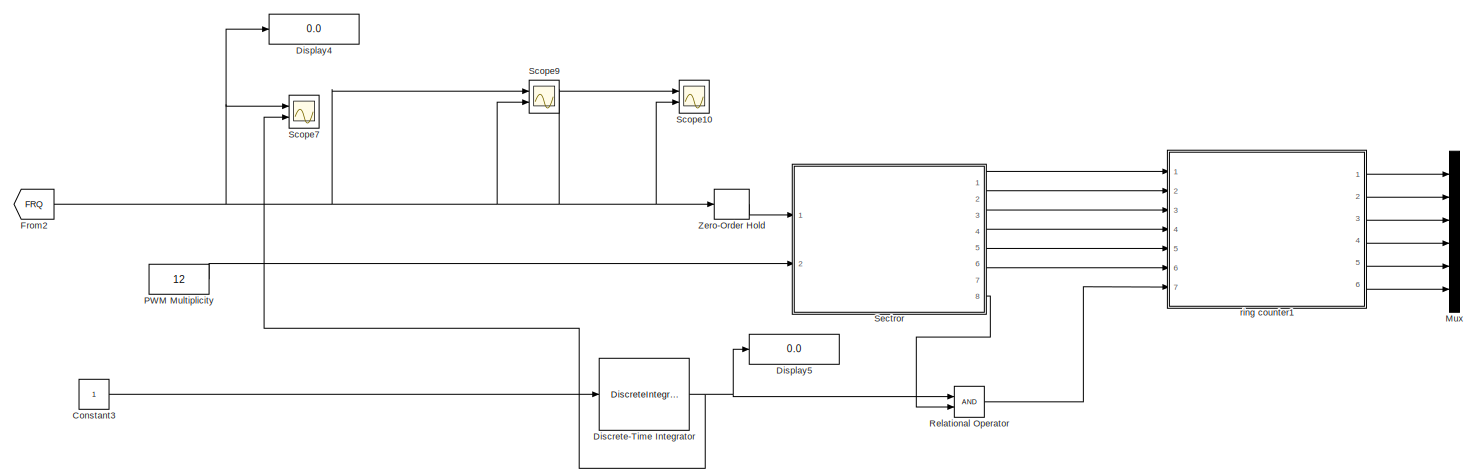
[diagram: root canvas - part 1/7, top left region]
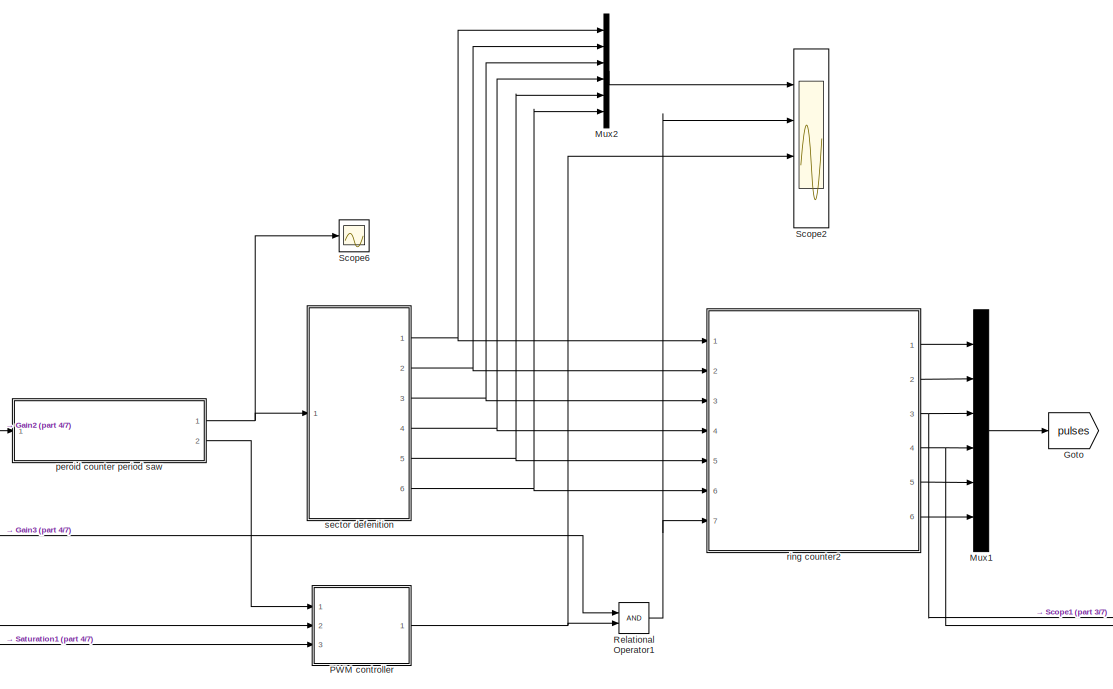
[diagram: root canvas - part 2/7, central region]
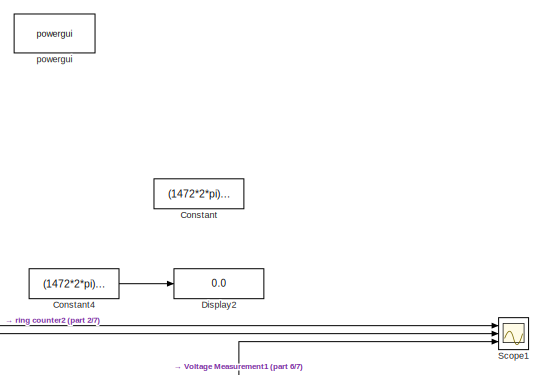
[diagram: root canvas - part 3/7, central region]
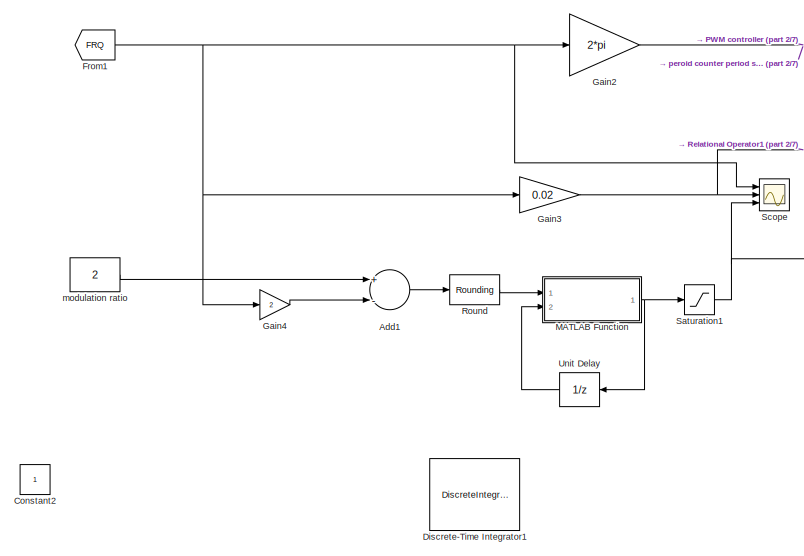
[diagram: root canvas - part 4/7, middle left region]
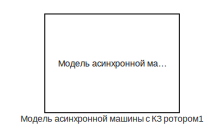
[diagram: root canvas - part 5/7, middle right region]
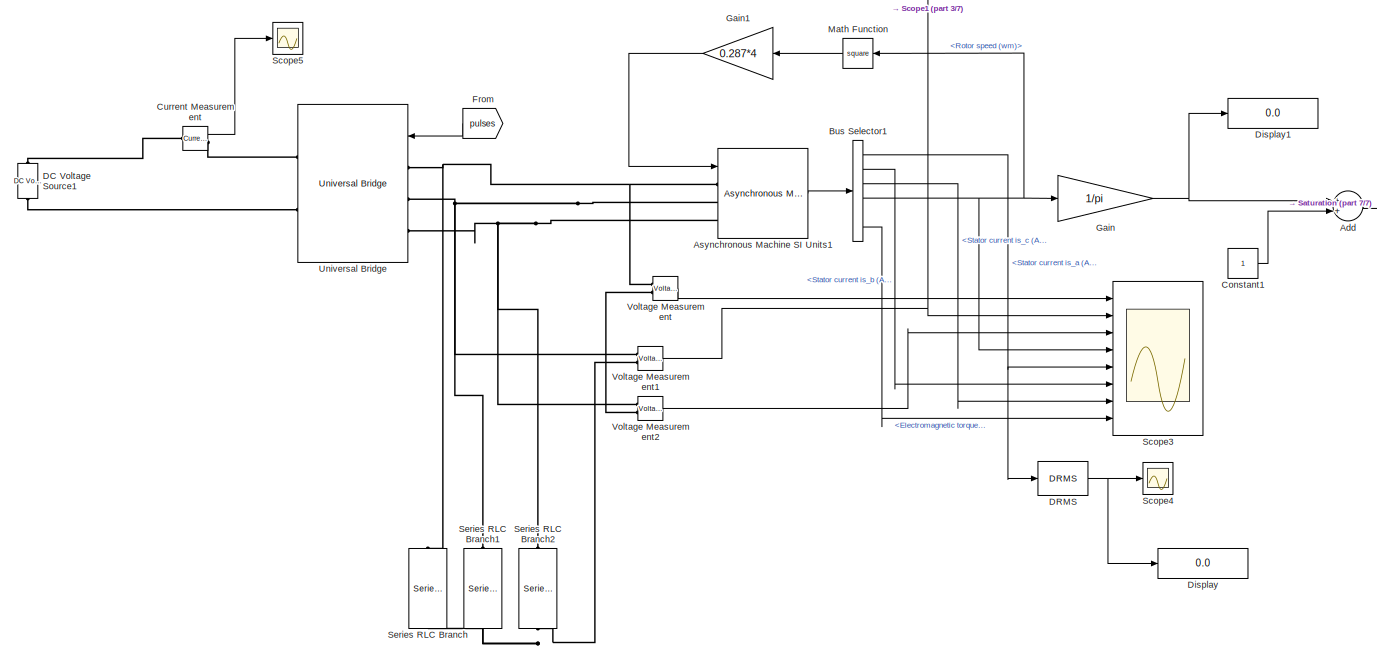
[diagram: root canvas - part 6/7, bottom center region]
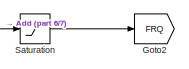
[diagram: root canvas - part 7/7, bottom right region]
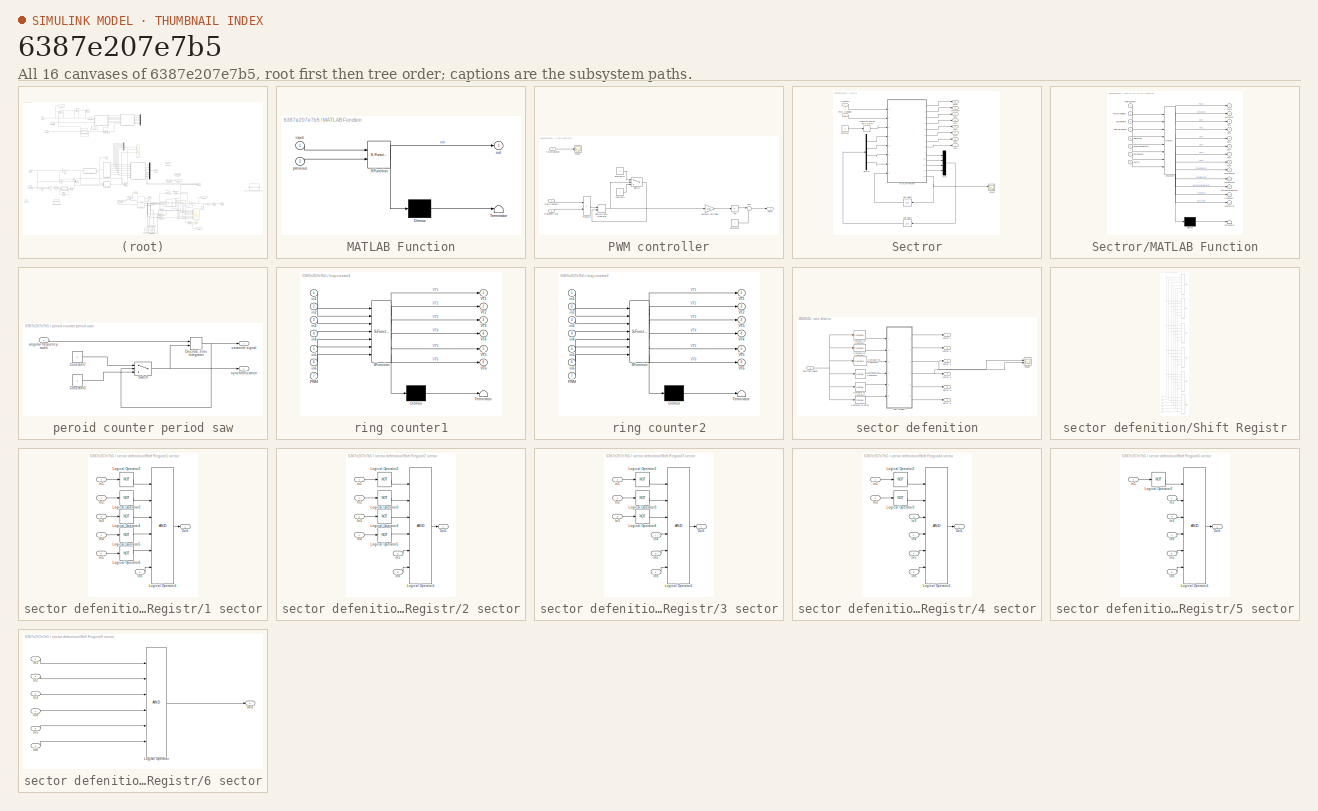
[diagram: thumbnail index - all 16 canvases of the model, root first then tree order]
MODEL slx_6387e207e7b5
KIND model
CONFIG AbsTol = auto
CONFIG EnableMultiTasking = off
CONFIG FixedStep = 2e-6
CONFIG MaxStep = 1e-4
CONFIG MinStep = auto
CONFIG RelTol = 1e-3
CONFIG SampleTimeConstraint = Unconstrained
CONFIG Solver = FixedStepDiscrete
CONFIG SolverName = FixedStepDiscrete
CONFIG StartTime = 0.0
CONFIG StopTime = 10
BLOCK [Sum] Add
  InputSameDT = off
  OutDataTypeStr = Inherit: Inherit via internal rule
  Ports = [2, 1]
  SaturateOnIntegerOverflow = off
BLOCK [Sum] Add1
  InputSameDT = off
  Inputs = +-
  OutDataTypeStr = Inherit: Inherit via internal rule
  Ports = [2, 1]
  SaturateOnIntegerOverflow = off
BLOCK [Reference] Asynchronous Machine SI Units1  REF=powerlib/Machines/Asynchronous Machine
SI Units
  Ports = [1, 1, 0, 0, 0, 3]
  SourceBlock = powerlib/Machines/Asynchronous Machine\nSI Units
  SourceProductBaseCode = PS
  SourceProductName = Simscape Power Systems
  SourceType = Asynchronous Machine
BLOCK [BusSelector] Bus Selector1
  OutputAsBus = off
  OutputSignals = Stator measurements.Stator current is_a (A),Stator measurements.Stator current is_b (A),Stator measurements.Stator current is_c (A),Mechanical.Rotor speed (wm),Mechanical.Rotor angle thetam (rad),Mechanical.Electromagnetic torque Te (N*m)
  Ports = [1, 6]
BLOCK [Constant] Constant
  Value = (1472*2*pi)/60
BLOCK [Constant] Constant1
BLOCK [Constant] Constant2
  Commented = on
BLOCK [Constant] Constant3
  Commented = on
BLOCK [Constant] Constant4
  Commented = on
  Value = (1472*2*pi)/60
BLOCK [Reference] Current Measurement  REF=powerlib/Measurements/Current Measurement
  Ports = [0, 1, 0, 0, 0, 1, 1]
  SourceBlock = powerlib/Measurements/Current Measurement
  SourceProductBaseCode = PS
  SourceProductName = Simscape Power Systems
  SourceType = Current Measurement
  UserDataPersistent = on
BLOCK [Reference] DC Voltage Source1  REF=powerlib/Electrical
Sources/DC Voltage Source
  Ports = [0, 0, 0, 0, 0, 1, 1]
  SourceBlock = powerlib/Electrical\nSources/DC Voltage Source
  SourceProductBaseCode = PS
  SourceProductName = Simscape Power Systems
  SourceType = DC Voltage Source
BLOCK [Reference] DRMS  REF=sdolib/RMS Blocks/DRMS
  Ports = [1, 1]
  SourceBlock = sdolib/RMS Blocks/DRMS
  SourceProductBaseCode = SO
  SourceProductName = Simulink Design Optimization
  SourceType = Discrete RMS Value Block
BLOCK [DiscreteIntegrator] Discrete-Time Integrator
  Commented = on
  ICPrevOutput = DiscIntNeverNeededParam
  ICPrevScaledInput = DiscIntNeverNeededParam
  InitialConditionSetting = State (most efficient)
  LimitOutput = on
  LowerSaturationLimit = 0
  Ports = [1, 1]
  SampleTime = -1
  UpperSaturationLimit = 1.1
  gainval = 0.001
BLOCK [DiscreteIntegrator] Discrete-Time Integrator1
  Commented = on
  ICPrevOutput = DiscIntNeverNeededParam
  ICPrevScaledInput = DiscIntNeverNeededParam
  InitialConditionSetting = State (most efficient)
  LimitOutput = on
  LowerSaturationLimit = 0
  Ports = [1, 1]
  SampleTime = -1
  UpperSaturationLimit = 1.1
  gainval = 0.001
BLOCK [Display] Display
  Decimation = 1
  Ports = [1]
BLOCK [Display] Display1
  Decimation = 1
  Ports = [1]
BLOCK [Display] Display2
  Commented = on
  Decimation = 1
  Ports = [1]
BLOCK [Display] Display4
  Commented = on
  Decimation = 1
  Ports = [1]
BLOCK [Display] Display5
  Commented = on
  Decimation = 1
  Ports = [1]
BLOCK [From] From
  GotoTag = pulses
BLOCK [From] From1
  GotoTag = FRQ
BLOCK [From] From2
  Commented = on
  GotoTag = FRQ
BLOCK [Gain] Gain
  Gain = 1/pi
  OutDataTypeStr = Inherit: Inherit via internal rule
  ParamDataTypeStr = Inherit: Inherit via internal rule
  SaturateOnIntegerOverflow = off
BLOCK [Gain] Gain1
  Gain = 0.287*4
  OutDataTypeStr = Inherit: Inherit via internal rule
  ParamDataTypeStr = Inherit: Inherit via internal rule
  SaturateOnIntegerOverflow = off
BLOCK [Gain] Gain2
  Gain = 2*pi
  OutDataTypeStr = Inherit: Inherit via internal rule
  ParamDataTypeStr = Inherit: Inherit via internal rule
  SaturateOnIntegerOverflow = off
BLOCK [Gain] Gain3
  Gain = 0.02
  OutDataTypeStr = Inherit: Inherit via internal rule
  ParamDataTypeStr = Inherit: Inherit via internal rule
  SaturateOnIntegerOverflow = off
BLOCK [Gain] Gain4
  Gain = 2
  OutDataTypeStr = Inherit: Inherit via internal rule
  ParamDataTypeStr = Inherit: Inherit via internal rule
  SaturateOnIntegerOverflow = off
BLOCK [Goto] Goto
  GotoTag = pulses
BLOCK [Goto] Goto2
  GotoTag = FRQ
BLOCK [SubSystem] MATLAB Function
  ErrorFcn = Stateflow.Translate.translate
  PermitHierarchicalResolution = ExplicitOnly
  Ports = [2, 1]
  RequestExecContextInheritance = off
  SFBlockType = MATLAB Function
  TreatAsAtomicUnit = on
  Variant = off
BLOCK [Demux] MATLAB Function/ Demux 
  Outputs = 1
  Ports = [1, 1]
BLOCK [S-Function] MATLAB Function/ SFunction 
  EnableBusSupport = on
  FunctionName = sf_sfun
  PortCounts = [2 2]
  Ports = [2, 2]
  SFcnIsStateOwnerBlock = off
  SFunctionDeploymentMode = off
  Tag = Stateflow S-Function AD_motor_test 2
BLOCK [Terminator] MATLAB Function/ Terminator 
BLOCK [Inport] MATLAB Function/input
  IconDisplay = Port number
BLOCK [Outport] MATLAB Function/out
  IconDisplay = Port number
BLOCK [Inport] MATLAB Function/previous
  IconDisplay = Port number
  Port = 2
BLOCK [Math] Math Function
  Operator = square
  Ports = [1, 1]
BLOCK [Mux] Mux
  Commented = on
  DisplayOption = bar
  Inputs = 6
  Ports = [6, 1]
BLOCK [Mux] Mux1
  DisplayOption = bar
  Inputs = 6
  Ports = [6, 1]
BLOCK [Mux] Mux2
  DisplayOption = bar
  Inputs = 6
  Ports = [6, 1]
BLOCK [Constant] PWM Multiplicity
  Commented = on
  Value = 12
BLOCK [SubSystem] PWM controller
  Ports = [3, 1]
  RequestExecContextInheritance = off
  Variant = off
BLOCK [Abs] PWM controller/Abs
  SaturateOnIntegerOverflow = off
BLOCK [Constant] PWM controller/Constant1
  OutDataTypeStr = double
  VectorParams1D = off
BLOCK [Constant] PWM controller/Constant10
  OutDataTypeStr = double
  Value = 0
  VectorParams1D = off
BLOCK [Constant] PWM controller/Constant8
  OutDataTypeStr = double
  VectorParams1D = off
BLOCK [DiscreteIntegrator] PWM controller/Discrete-Time Integrator
  ExternalReset = falling
  ICPrevOutput = DiscIntNeverNeededParam
  ICPrevScaledInput = DiscIntNeverNeededParam
  InitialCondition = -pi/3
  InitialConditionSetting = State (most efficient)
  Ports = [2, 1]
  SampleTime = -1
BLOCK [Outport] PWM controller/PWM
  IconDisplay = Port number
BLOCK [Product] PWM controller/Product5
  InputSameDT = off
  OutDataTypeStr = Inherit: Inherit via internal rule
  Ports = [2, 1]
  RndMeth = Floor
  SaturateOnIntegerOverflow = off
BLOCK [Scope] PWM controller/Scope
  NumInputPorts = 1
  Ports = [1]
  ScopeSpecificationString = Simulink.scopes.TimeScopeBlockCfg('CurrentConfiguration', extmgr.ConfigurationSet(extmgr.Configuration('Core','General UI',true),extmgr.Configuration('Core','Source UI',true),extmgr.Configuration('Sources','WiredSimulink',true,'DataLoggingVariableName','ScopeData6'),extmgr.Configuration('Visuals','Time Domain',true,'SerializedDisplays',{struct('MinYLimReal','0.9','MaxYLimReal','1.1','YLabelReal','...<+1411ch>
BLOCK [Sum] PWM controller/Sum
  IconShape = round
  InputSameDT = off
  Inputs = |-+
  OutDataTypeStr = Inherit: Inherit via internal rule
  Ports = [2, 1]
  SaturateOnIntegerOverflow = off
BLOCK [Switch] PWM controller/Switch2
  InputSameDT = off
  SaturateOnIntegerOverflow = off
  Threshold = pi/3
BLOCK [Inport] PWM controller/main frequency
  IconDisplay = Port number
  Port = 2
BLOCK [Inport] PWM controller/modulation ratio
  IconDisplay = Port number
  Port = 3
BLOCK [Gain] PWM controller/sawtooth normalize
  Gain = 3/pi
  OutDataTypeStr = Inherit: Inherit via internal rule
  ParamDataTypeStr = Inherit: Inherit via internal rule
  SaturateOnIntegerOverflow = off
BLOCK [Inport] PWM controller/synchronization
  IconDisplay = Port number
BLOCK [RelationalOperator] Relational Operator
  Commented = on
  InputSameDT = off
  OutDataTypeStr = boolean
  Ports = [2, 1]
  RndMeth = Simplest
BLOCK [RelationalOperator] Relational Operator1
  InputSameDT = off
  OutDataTypeStr = boolean
  Ports = [2, 1]
  RndMeth = Simplest
BLOCK [Rounding] Round
  Operator = round
BLOCK [Saturate] Saturation
  InputPortMap = u0
  LowerLimit = 1
  Ports = [1, 1]
  UpperLimit = 10000
BLOCK [Saturate] Saturation1
  InputPortMap = u0
  LowerLimit = 2
  Ports = [1, 1]
  UpperLimit = 66
BLOCK [Scope] Scope
  NumInputPorts = 3
  Ports = [3]
  ScopeSpecificationString = Simulink.scopes.TimeScopeBlockCfg('CurrentConfiguration', extmgr.ConfigurationSet(extmgr.Configuration('Core','General UI',true),extmgr.Configuration('Core','Source UI',true),extmgr.Configuration('Sources','WiredSimulink',true,'DataLoggingVariableName','ScopeData1'),extmgr.Configuration('Visuals','Time Domain',true,'SerializedDisplays',{struct('MinYLimReal','-4.35811','MaxYLimReal','49.22302','YLa...<+2783ch>
BLOCK [Scope] Scope1
  NumInputPorts = 3
  Ports = [3]
  ScopeSpecificationString = Simulink.scopes.TimeScopeBlockCfg('CurrentConfiguration', extmgr.ConfigurationSet(extmgr.Configuration('Core','General UI',true),extmgr.Configuration('Core','Source UI',true),extmgr.Configuration('Sources','WiredSimulink',true,'DataLoggingVariableName','ScopeData2'),extmgr.Configuration('Visuals','Time Domain',true,'SerializedDisplays',{struct('MinYLimReal','-0.125','MaxYLimReal','1.125','YLabelRe...<+2776ch>
BLOCK [Scope] Scope10
  Commented = on
  NumInputPorts = 2
  Ports = [2]
  ScopeSpecificationString = Simulink.scopes.TimeScopeBlockCfg('CurrentConfiguration', extmgr.ConfigurationSet(extmgr.Configuration('Core','General UI',true),extmgr.Configuration('Core','Source UI',true),extmgr.Configuration('Sources','WiredSimulink',true,'DataLoggingVariableName','ScopeData1'),extmgr.Configuration('Visuals','Time Domain',true,'SerializedDisplays',{struct('MinYLimReal','0.9','MaxYLimReal','1.1','YLabelReal','...<+2033ch>
BLOCK [Scope] Scope2
  NumInputPorts = 4
  Ports = [4]
  ScopeSpecificationString = Simulink.scopes.TimeScopeBlockCfg('CurrentConfiguration', extmgr.ConfigurationSet(extmgr.Configuration('Core','General UI',true),extmgr.Configuration('Core','Source UI',true),extmgr.Configuration('Sources','WiredSimulink',true,'DataLoggingVariableName','ScopeData4'),extmgr.Configuration('Visuals','Time Domain',true,'SerializedDisplays',{struct('MinYLimReal','-0.125','MaxYLimReal','1.125','YLabelRe...<+3576ch>
BLOCK [Scope] Scope3
  NumInputPorts = 8
  Ports = [8]
  ScopeSpecificationString = Simulink.scopes.TimeScopeBlockCfg('CurrentConfiguration', extmgr.ConfigurationSet(extmgr.Configuration('Core','General UI',true),extmgr.Configuration('Core','Source UI',true),extmgr.Configuration('Sources','WiredSimulink',true,'DataLoggingVariableName','ScopeData2'),extmgr.Configuration('Visuals','Time Domain',true,'SerializedDisplays',{struct('MinYLimReal','-2395.19878','MaxYLimReal','2394.96212'...<+6433ch>
BLOCK [Scope] Scope4
  NumInputPorts = 1
  Ports = [1]
  ScopeSpecificationString = Simulink.scopes.TimeScopeBlockCfg('CurrentConfiguration', extmgr.ConfigurationSet(extmgr.Configuration('Core','General UI',true),extmgr.Configuration('Core','Source UI',true),extmgr.Configuration('Sources','WiredSimulink',true,'DataLoggingVariableName','ScopeData3'),extmgr.Configuration('Visuals','Time Domain',true,'SerializedDisplays',{struct('MinYLimReal','-46.0439','MaxYLimReal','414.39509','YL...<+1469ch>
BLOCK [Scope] Scope5
  NumInputPorts = 1
  Ports = [1]
  ScopeSpecificationString = Simulink.scopes.TimeScopeBlockCfg('CurrentConfiguration', extmgr.ConfigurationSet(extmgr.Configuration('Core','General UI',true),extmgr.Configuration('Core','Source UI',true),extmgr.Configuration('Sources','WiredSimulink',true,'DataLoggingVariableName','ScopeData4'),extmgr.Configuration('Visuals','Time Domain',true,'SerializedDisplays',{struct('MinYLimReal','-6734.55585','MaxYLimReal','7309.56797'...<+1778ch>
BLOCK [Scope] Scope6
  NumInputPorts = 1
  Ports = [1]
  ScopeSpecificationString = Simulink.scopes.TimeScopeBlockCfg('CurrentConfiguration', extmgr.ConfigurationSet(extmgr.Configuration('Core','General UI',true),extmgr.Configuration('Core','Source UI',true),extmgr.Configuration('Sources','WiredSimulink',true,'DataLoggingVariableName','ScopeData5'),extmgr.Configuration('Visuals','Time Domain',true,'SerializedDisplays',{struct('MinYLimReal','-0.78539','MaxYLimReal','7.06855','YLab...<+1443ch>
BLOCK [Scope] Scope7
  Commented = on
  NumInputPorts = 2
  Ports = [2]
  ScopeSpecificationString = Simulink.scopes.TimeScopeBlockCfg('CurrentConfiguration', extmgr.ConfigurationSet(extmgr.Configuration('Core','General UI',true),extmgr.Configuration('Core','Source UI',true),extmgr.Configuration('Sources','WiredSimulink',true,'DataLoggingVariableName','ScopeData1'),extmgr.Configuration('Visuals','Time Domain',true,'SerializedDisplays',{struct('MinYLimReal','4.71295','MaxYLimReal','7.58342','YLabe...<+2069ch>
BLOCK [Scope] Scope9
  Commented = on
  NumInputPorts = 2
  Ports = [2]
  ScopeSpecificationString = Simulink.scopes.TimeScopeBlockCfg('CurrentConfiguration', extmgr.ConfigurationSet(extmgr.Configuration('Core','General UI',true),extmgr.Configuration('Core','Source UI',true),extmgr.Configuration('Sources','WiredSimulink',true,'DataLoggingVariableName','ScopeData3'),extmgr.Configuration('Visuals','Time Domain',true,'SerializedDisplays',{struct('MinYLimReal','-12.5','MaxYLimReal','112.5','YLabelRea...<+2046ch>
BLOCK [SubSystem] Sectror
  Commented = on
  Ports = [2, 8]
  RequestExecContextInheritance = off
  Variant = off
BLOCK [Constant] Sectror/Constant
  Value = 0
BLOCK [Demux] Sectror/Demux
  DisplayOption = bar
  Ports = [1, 4]
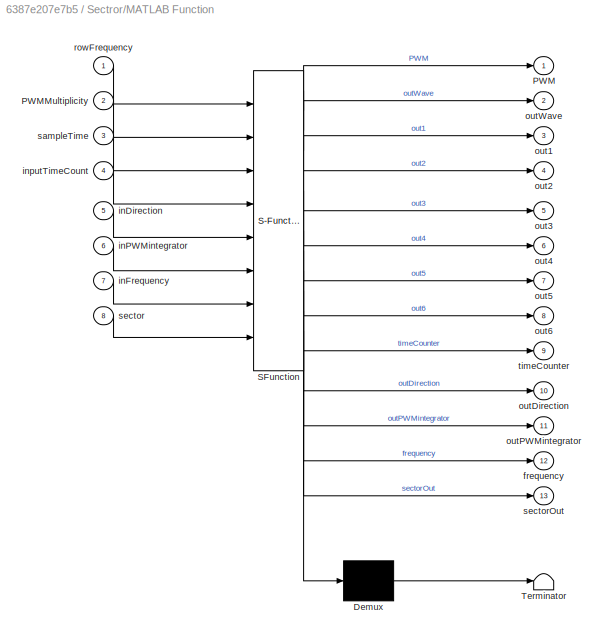
BLOCK [SubSystem] Sectror/MATLAB Function
  ErrorFcn = Stateflow.Translate.translate
  PermitHierarchicalResolution = ExplicitOnly
  Ports = [8, 13]
  RequestExecContextInheritance = off
  SFBlockType = MATLAB Function
  TreatAsAtomicUnit = on
  Variant = off
BLOCK [Demux] Sectror/MATLAB Function/ Demux 
  Outputs = 1
  Ports = [1, 1]
BLOCK [S-Function] Sectror/MATLAB Function/ SFunction 
  EnableBusSupport = on
  FunctionName = sf_sfun
  PortCounts = [8 14]
  Ports = [8, 14]
  SFcnIsStateOwnerBlock = off
  SFunctionDeploymentMode = off
  Tag = Stateflow S-Function AD_motor_test 3
BLOCK [Terminator] Sectror/MATLAB Function/ Terminator 
BLOCK [Outport] Sectror/MATLAB Function/PWM
  IconDisplay = Port number
BLOCK [Inport] Sectror/MATLAB Function/PWMMultiplicity
  IconDisplay = Port number
  Port = 2
BLOCK [Outport] Sectror/MATLAB Function/frequency
  IconDisplay = Port number
  Port = 12
BLOCK [Inport] Sectror/MATLAB Function/inDirection
  IconDisplay = Port number
  Port = 5
BLOCK [Inport] Sectror/MATLAB Function/inFrequency
  IconDisplay = Port number
  Port = 7
BLOCK [Inport] Sectror/MATLAB Function/inPWMintegrator
  IconDisplay = Port number
  Port = 6
BLOCK [Inport] Sectror/MATLAB Function/inputTimeCount
  IconDisplay = Port number
  Port = 4
BLOCK [Outport] Sectror/MATLAB Function/out1
  IconDisplay = Port number
  Port = 3
BLOCK [Outport] Sectror/MATLAB Function/out2
  IconDisplay = Port number
  Port = 4
BLOCK [Outport] Sectror/MATLAB Function/out3
  IconDisplay = Port number
  Port = 5
BLOCK [Outport] Sectror/MATLAB Function/out4
  IconDisplay = Port number
  Port = 6
BLOCK [Outport] Sectror/MATLAB Function/out5
  IconDisplay = Port number
  Port = 7
BLOCK [Outport] Sectror/MATLAB Function/out6
  IconDisplay = Port number
  Port = 8
BLOCK [Outport] Sectror/MATLAB Function/outDirection
  IconDisplay = Port number
  Port = 10
BLOCK [Outport] Sectror/MATLAB Function/outPWMintegrator
  IconDisplay = Port number
  Port = 11
BLOCK [Outport] Sectror/MATLAB Function/outWave
  IconDisplay = Port number
  Port = 2
BLOCK [Inport] Sectror/MATLAB Function/rowFrequency
  IconDisplay = Port number
BLOCK [Inport] Sectror/MATLAB Function/sampleTime
  IconDisplay = Port number
  Port = 3
BLOCK [Inport] Sectror/MATLAB Function/sector
  IconDisplay = Port number
  Port = 8
BLOCK [Outport] Sectror/MATLAB Function/sectorOut
  IconDisplay = Port number
  Port = 13
BLOCK [Outport] Sectror/MATLAB Function/timeCounter
  IconDisplay = Port number
  Port = 9
BLOCK [Mux] Sectror/Mux
  DisplayOption = bar
  Ports = [4, 1]
BLOCK [Outport] Sectror/PWM
  IconDisplay = Port number
  Port = 8
BLOCK [Inport] Sectror/PWM Multiplicity
  IconDisplay = Port number
  Port = 2
BLOCK [Scope] Sectror/Scope
  NumInputPorts = 2
  Ports = [2]
  ScopeSpecificationString = Simulink.scopes.TimeScopeBlockCfg('CurrentConfiguration', extmgr.ConfigurationSet(extmgr.Configuration('Core','General UI',true),extmgr.Configuration('Core','Source UI',true),extmgr.Configuration('Sources','WiredSimulink',true,'DataLoggingVariableName','ScopeData1'),extmgr.Configuration('Visuals','Time Domain',true,'SerializedDisplays',{struct('MinYLimReal','0.375','MaxYLimReal','6.625','YLabelRea...<+2062ch>
BLOCK [UnitDelay] Sectror/Unit Delay1
  InputProcessing = Elements as channels (sample based)
  SampleTime = -1
BLOCK [UnitDelay] Sectror/Unit Delay2
  InitialCondition = 1
  InputProcessing = Elements as channels (sample based)
  SampleTime = -1
BLOCK [SampleTimeMath] Sectror/Weighted Sample Time Math3
  TsampMathOp = Ts Only
BLOCK [Inport] Sectror/frequency
  IconDisplay = Port number
BLOCK [Outport] Sectror/out1
  IconDisplay = Port number
BLOCK [Outport] Sectror/out2
  IconDisplay = Port number
  Port = 2
BLOCK [Outport] Sectror/out3
  IconDisplay = Port number
  Port = 3
BLOCK [Outport] Sectror/out4
  IconDisplay = Port number
  Port = 4
BLOCK [Outport] Sectror/out5
  IconDisplay = Port number
  Port = 5
BLOCK [Outport] Sectror/out6
  IconDisplay = Port number
  Port = 6
BLOCK [Outport] Sectror/outWave
  IconDisplay = Port number
  Port = 7
BLOCK [Reference] Series RLC Branch  REF=powerlib/Elements/Series RLC Branch
  Ports = [0, 0, 0, 0, 0, 1, 1]
  SourceBlock = powerlib/Elements/Series RLC Branch
  SourceProductBaseCode = PS
  SourceProductName = Simscape Power Systems
  SourceType = Series RLC Branch
BLOCK [Reference] Series RLC Branch1  REF=powerlib/Elements/Series RLC Branch
  Ports = [0, 0, 0, 0, 0, 1, 1]
  SourceBlock = powerlib/Elements/Series RLC Branch
  SourceProductBaseCode = PS
  SourceProductName = Simscape Power Systems
  SourceType = Series RLC Branch
BLOCK [Reference] Series RLC Branch2  REF=powerlib/Elements/Series RLC Branch
  Ports = [0, 0, 0, 0, 0, 1, 1]
  SourceBlock = powerlib/Elements/Series RLC Branch
  SourceProductBaseCode = PS
  SourceProductName = Simscape Power Systems
  SourceType = Series RLC Branch
BLOCK [UnitDelay] Unit Delay
  InitialCondition = 66
  InputProcessing = Elements as channels (sample based)
  SampleTime = -1
BLOCK [Reference] Universal Bridge  REF=powerlib/Power
Electronics/Universal Bridge
  Ports = [1, 0, 0, 0, 0, 3, 2]
  SourceBlock = powerlib/Power\nElectronics/Universal Bridge
  SourceProductBaseCode = PS
  SourceProductName = Simscape Power Systems
  SourceType = Universal Bridge
BLOCK [Reference] Voltage Measurement  REF=powerlib/Measurements/Voltage Measurement
  Ports = [0, 1, 0, 0, 0, 2]
  SourceBlock = powerlib/Measurements/Voltage Measurement
  SourceProductBaseCode = PS
  SourceProductName = Simscape Power Systems
  SourceType = Voltage Measurement
  UserDataPersistent = on
BLOCK [Reference] Voltage Measurement1  REF=powerlib/Measurements/Voltage Measurement
  Ports = [0, 1, 0, 0, 0, 2]
  SourceBlock = powerlib/Measurements/Voltage Measurement
  SourceProductBaseCode = PS
  SourceProductName = Simscape Power Systems
  SourceType = Voltage Measurement
  UserDataPersistent = on
BLOCK [Reference] Voltage Measurement2  REF=powerlib/Measurements/Voltage Measurement
  Ports = [0, 1, 0, 0, 0, 2]
  SourceBlock = powerlib/Measurements/Voltage Measurement
  SourceProductBaseCode = PS
  SourceProductName = Simscape Power Systems
  SourceType = Voltage Measurement
  UserDataPersistent = on
BLOCK [ZeroOrderHold] Zero-Order Hold
  Commented = on
  SampleTime = 0.001
BLOCK [Constant] modulation ratio
  OutDataTypeStr = double
  Value = 2
  VectorParams1D = off
BLOCK [SubSystem] peroid counter period saw
  Ports = [1, 2]
  RequestExecContextInheritance = off
  Variant = off
BLOCK [Constant] peroid counter period saw/Constant3
  OutDataTypeStr = double
  VectorParams1D = off
BLOCK [Constant] peroid counter period saw/Constant7
  OutDataTypeStr = double
  Value = 0
  VectorParams1D = off
BLOCK [DiscreteIntegrator] peroid counter period saw/Discrete-Time Integrator
  ExternalReset = falling
  ICPrevOutput = DiscIntNeverNeededParam
  ICPrevScaledInput = DiscIntNeverNeededParam
  InitialConditionSetting = State (most efficient)
  Ports = [2, 1]
  SampleTime = -1
BLOCK [Switch] peroid counter period saw/Switch
  InputSameDT = off
  SaturateOnIntegerOverflow = off
  Threshold = 2*pi
BLOCK [Inport] peroid counter period saw/angular frequency, rad//s
  IconDisplay = Port number
BLOCK [Outport] peroid counter period saw/sawtooth signal
  IconDisplay = Port number
BLOCK [Outport] peroid counter period saw/synchronization
  IconDisplay = Port number
  Port = 2
BLOCK [Reference] powergui  REF=powerlib/powergui
  Ports = []
  Priority = 1
  SourceBlock = powerlib/powergui
  SourceProductBaseCode = PS
  SourceProductName = Simscape Power Systems
  SourceType = PSB option menu block
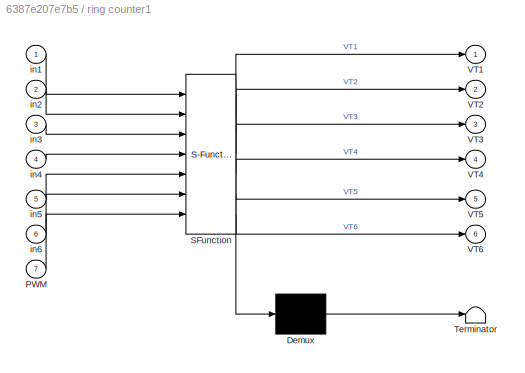
BLOCK [SubSystem] ring counter1
  Commented = on
  ErrorFcn = Stateflow.Translate.translate
  PermitHierarchicalResolution = ExplicitOnly
  Ports = [7, 6]
  RequestExecContextInheritance = off
  SFBlockType = MATLAB Function
  TreatAsAtomicUnit = on
  Variant = off
BLOCK [Demux] ring counter1/ Demux 
  Outputs = 1
  Ports = [1, 1]
BLOCK [S-Function] ring counter1/ SFunction 
  EnableBusSupport = on
  FunctionName = sf_sfun
  PortCounts = [7 7]
  Ports = [7, 7]
  SFcnIsStateOwnerBlock = off
  SFunctionDeploymentMode = off
  Tag = Stateflow S-Function AD_motor_test 5
BLOCK [Terminator] ring counter1/ Terminator 
BLOCK [Inport] ring counter1/PWM
  IconDisplay = Port number
  Port = 7
BLOCK [Outport] ring counter1/VT1
  IconDisplay = Port number
BLOCK [Outport] ring counter1/VT2
  IconDisplay = Port number
  Port = 2
BLOCK [Outport] ring counter1/VT3
  IconDisplay = Port number
  Port = 3
BLOCK [Outport] ring counter1/VT4
  IconDisplay = Port number
  Port = 4
BLOCK [Outport] ring counter1/VT5
  IconDisplay = Port number
  Port = 5
BLOCK [Outport] ring counter1/VT6
  IconDisplay = Port number
  Port = 6
BLOCK [Inport] ring counter1/in1
  IconDisplay = Port number
BLOCK [Inport] ring counter1/in2
  IconDisplay = Port number
  Port = 2
BLOCK [Inport] ring counter1/in3
  IconDisplay = Port number
  Port = 3
BLOCK [Inport] ring counter1/in4
  IconDisplay = Port number
  Port = 4
BLOCK [Inport] ring counter1/in5
  IconDisplay = Port number
  Port = 5
BLOCK [Inport] ring counter1/in6
  IconDisplay = Port number
  Port = 6
BLOCK [SubSystem] ring counter2
  ErrorFcn = Stateflow.Translate.translate
  PermitHierarchicalResolution = ExplicitOnly
  Ports = [7, 6]
  RequestExecContextInheritance = off
  SFBlockType = MATLAB Function
  TreatAsAtomicUnit = on
  Variant = off
BLOCK [Demux] ring counter2/ Demux 
  Outputs = 1
  Ports = [1, 1]
BLOCK [S-Function] ring counter2/ SFunction 
  EnableBusSupport = on
  FunctionName = sf_sfun
  PortCounts = [7 7]
  Ports = [7, 7]
  SFcnIsStateOwnerBlock = off
  SFunctionDeploymentMode = off
  Tag = Stateflow S-Function AD_motor_test 1
BLOCK [Terminator] ring counter2/ Terminator 
BLOCK [Inport] ring counter2/PWM
  IconDisplay = Port number
  Port = 7
BLOCK [Outport] ring counter2/VT1
  IconDisplay = Port number
BLOCK [Outport] ring counter2/VT2
  IconDisplay = Port number
  Port = 2
BLOCK [Outport] ring counter2/VT3
  IconDisplay = Port number
  Port = 3
BLOCK [Outport] ring counter2/VT4
  IconDisplay = Port number
  Port = 4
BLOCK [Outport] ring counter2/VT5
  IconDisplay = Port number
  Port = 5
BLOCK [Outport] ring counter2/VT6
  IconDisplay = Port number
  Port = 6
BLOCK [Inport] ring counter2/in1
  IconDisplay = Port number
BLOCK [Inport] ring counter2/in2
  IconDisplay = Port number
  Port = 2
BLOCK [Inport] ring counter2/in3
  IconDisplay = Port number
  Port = 3
BLOCK [Inport] ring counter2/in4
  IconDisplay = Port number
  Port = 4
BLOCK [Inport] ring counter2/in5
  IconDisplay = Port number
  Port = 5
BLOCK [Inport] ring counter2/in6
  IconDisplay = Port number
  Port = 6
BLOCK [SubSystem] sector defenition
  Ports = [1, 6]
  RequestExecContextInheritance = off
  Variant = off
BLOCK [Reference] sector defenition/Compare To Constant1  REF=simulink/Logic and Bit
Operations/Compare
To Constant
  Ports = [1, 1]
  SourceBlock = simulink/Logic and Bit\nOperations/Compare\nTo Constant
  SourceProductBaseCode = SL
  SourceProductName = Simulink
  SourceType = Compare To Constant
BLOCK [Reference] sector defenition/Compare To Constant2  REF=simulink/Logic and Bit
Operations/Compare
To Constant
  Ports = [1, 1]
  SourceBlock = simulink/Logic and Bit\nOperations/Compare\nTo Constant
  SourceProductBaseCode = SL
  SourceProductName = Simulink
  SourceType = Compare To Constant
BLOCK [Reference] sector defenition/Compare To Constant3  REF=simulink/Logic and Bit
Operations/Compare
To Constant
  Ports = [1, 1]
  SourceBlock = simulink/Logic and Bit\nOperations/Compare\nTo Constant
  SourceProductBaseCode = SL
  SourceProductName = Simulink
  SourceType = Compare To Constant
BLOCK [Reference] sector defenition/Compare To Constant4  REF=simulink/Logic and Bit
Operations/Compare
To Constant
  Ports = [1, 1]
  SourceBlock = simulink/Logic and Bit\nOperations/Compare\nTo Constant
  SourceProductBaseCode = SL
  SourceProductName = Simulink
  SourceType = Compare To Constant
BLOCK [Reference] sector defenition/Compare To Constant5  REF=simulink/Logic and Bit
Operations/Compare
To Constant
  Ports = [1, 1]
  SourceBlock = simulink/Logic and Bit\nOperations/Compare\nTo Constant
  SourceProductBaseCode = SL
  SourceProductName = Simulink
  SourceType = Compare To Constant
BLOCK [Reference] sector defenition/Compare To Zero1  REF=simulink/Logic and Bit
Operations/Compare
To Zero
  Ports = [1, 1]
  SourceBlock = simulink/Logic and Bit\nOperations/Compare\nTo Zero
  SourceProductBaseCode = SL
  SourceProductName = Simulink
  SourceType = Compare To Zero
BLOCK [Scope] sector defenition/Scope
  NumInputPorts = 2
  Ports = [2]
  ScopeSpecificationString = Simulink.scopes.TimeScopeBlockCfg('CurrentConfiguration', extmgr.ConfigurationSet(extmgr.Configuration('Core','General UI',true),extmgr.Configuration('Core','Source UI',true),extmgr.Configuration('Sources','WiredSimulink',true,'DataLoggingVariableName','ScopeData3'),extmgr.Configuration('Visuals','Time Domain',true,'SerializedDisplays',{struct('MinYLimReal','-0.125','MaxYLimReal','1.125','YLabelRe...<+2055ch>
BLOCK [SubSystem] sector defenition/Shift Registr
  Ports = [6, 6]
  RequestExecContextInheritance = off
  Variant = off
BLOCK [SubSystem] sector defenition/Shift Registr/1 sector
  Ports = [6, 1]
  RequestExecContextInheritance = off
  Variant = off
BLOCK [Inport] sector defenition/Shift Registr/1 sector/In2
  IconDisplay = Port number
  Port = 2
BLOCK [Inport] sector defenition/Shift Registr/1 sector/In3
  IconDisplay = Port number
  Port = 3
BLOCK [Inport] sector defenition/Shift Registr/1 sector/In4
  IconDisplay = Port number
  Port = 4
BLOCK [Inport] sector defenition/Shift Registr/1 sector/In5
  IconDisplay = Port number
  Port = 5
BLOCK [Inport] sector defenition/Shift Registr/1 sector/In6
  IconDisplay = Port number
  Port = 6
BLOCK [Logic] sector defenition/Shift Registr/1 sector/Logical Operator1
  AllPortsSameDT = off
  Inputs = 6
  OutDataTypeStr = boolean
  Ports = [6, 1]
BLOCK [Logic] sector defenition/Shift Registr/1 sector/Logical Operator2
  AllPortsSameDT = off
  Inputs = 6
  Operator = NOT
  OutDataTypeStr = boolean
  Ports = [1, 1]
BLOCK [Logic] sector defenition/Shift Registr/1 sector/Logical Operator3
  AllPortsSameDT = off
  Inputs = 6
  Operator = NOT
  OutDataTypeStr = boolean
  Ports = [1, 1]
BLOCK [Logic] sector defenition/Shift Registr/1 sector/Logical Operator4
  AllPortsSameDT = off
  Inputs = 6
  Operator = NOT
  OutDataTypeStr = boolean
  Ports = [1, 1]
BLOCK [Logic] sector defenition/Shift Registr/1 sector/Logical Operator5
  AllPortsSameDT = off
  Inputs = 6
  Operator = NOT
  OutDataTypeStr = boolean
  Ports = [1, 1]
BLOCK [Logic] sector defenition/Shift Registr/1 sector/Logical Operator6
  AllPortsSameDT = off
  Inputs = 6
  Operator = NOT
  OutDataTypeStr = boolean
  Ports = [1, 1]
BLOCK [Outport] sector defenition/Shift Registr/1 sector/Out1
  IconDisplay = Port number
BLOCK [Inport] sector defenition/Shift Registr/1 sector/in1
  IconDisplay = Port number
BLOCK [SubSystem] sector defenition/Shift Registr/2 sector
  Ports = [6, 1]
  RequestExecContextInheritance = off
  Variant = off
BLOCK [Inport] sector defenition/Shift Registr/2 sector/In2
  IconDisplay = Port number
  Port = 2
BLOCK [Inport] sector defenition/Shift Registr/2 sector/In3
  IconDisplay = Port number
  Port = 3
BLOCK [Inport] sector defenition/Shift Registr/2 sector/In4
  IconDisplay = Port number
  Port = 4
BLOCK [Inport] sector defenition/Shift Registr/2 sector/In5
  IconDisplay = Port number
  Port = 5
BLOCK [Inport] sector defenition/Shift Registr/2 sector/In6
  IconDisplay = Port number
  Port = 6
BLOCK [Logic] sector defenition/Shift Registr/2 sector/Logical Operator1
  AllPortsSameDT = off
  Inputs = 6
  OutDataTypeStr = boolean
  Ports = [6, 1]
BLOCK [Logic] sector defenition/Shift Registr/2 sector/Logical Operator2
  AllPortsSameDT = off
  Inputs = 6
  Operator = NOT
  OutDataTypeStr = boolean
  Ports = [1, 1]
BLOCK [Logic] sector defenition/Shift Registr/2 sector/Logical Operator3
  AllPortsSameDT = off
  Inputs = 6
  Operator = NOT
  OutDataTypeStr = boolean
  Ports = [1, 1]
BLOCK [Logic] sector defenition/Shift Registr/2 sector/Logical Operator4
  AllPortsSameDT = off
  Inputs = 6
  Operator = NOT
  OutDataTypeStr = boolean
  Ports = [1, 1]
BLOCK [Logic] sector defenition/Shift Registr/2 sector/Logical Operator5
  AllPortsSameDT = off
  Inputs = 6
  Operator = NOT
  OutDataTypeStr = boolean
  Ports = [1, 1]
BLOCK [Outport] sector defenition/Shift Registr/2 sector/Out1
  IconDisplay = Port number
BLOCK [Inport] sector defenition/Shift Registr/2 sector/in1
  IconDisplay = Port number
BLOCK [SubSystem] sector defenition/Shift Registr/3 sector
  Ports = [6, 1]
  RequestExecContextInheritance = off
  Variant = off
BLOCK [Inport] sector defenition/Shift Registr/3 sector/In2
  IconDisplay = Port number
  Port = 2
BLOCK [Inport] sector defenition/Shift Registr/3 sector/In3
  IconDisplay = Port number
  Port = 3
BLOCK [Inport] sector defenition/Shift Registr/3 sector/In4
  IconDisplay = Port number
  Port = 4
BLOCK [Inport] sector defenition/Shift Registr/3 sector/In5
  IconDisplay = Port number
  Port = 5
BLOCK [Inport] sector defenition/Shift Registr/3 sector/In6
  IconDisplay = Port number
  Port = 6
BLOCK [Logic] sector defenition/Shift Registr/3 sector/Logical Operator1
  AllPortsSameDT = off
  Inputs = 6
  OutDataTypeStr = boolean
  Ports = [6, 1]
BLOCK [Logic] sector defenition/Shift Registr/3 sector/Logical Operator2
  AllPortsSameDT = off
  Inputs = 6
  Operator = NOT
  OutDataTypeStr = boolean
  Ports = [1, 1]
BLOCK [Logic] sector defenition/Shift Registr/3 sector/Logical Operator3
  AllPortsSameDT = off
  Inputs = 6
  Operator = NOT
  OutDataTypeStr = boolean
  Ports = [1, 1]
BLOCK [Logic] sector defenition/Shift Registr/3 sector/Logical Operator4
  AllPortsSameDT = off
  Inputs = 6
  Operator = NOT
  OutDataTypeStr = boolean
  Ports = [1, 1]
BLOCK [Outport] sector defenition/Shift Registr/3 sector/Out1
  IconDisplay = Port number
BLOCK [Inport] sector defenition/Shift Registr/3 sector/in1
  IconDisplay = Port number
BLOCK [SubSystem] sector defenition/Shift Registr/4 sector
  Ports = [6, 1]
  RequestExecContextInheritance = off
  Variant = off
BLOCK [Inport] sector defenition/Shift Registr/4 sector/In2
  IconDisplay = Port number
  Port = 2
BLOCK [Inport] sector defenition/Shift Registr/4 sector/In3
  IconDisplay = Port number
  Port = 3
BLOCK [Inport] sector defenition/Shift Registr/4 sector/In4
  IconDisplay = Port number
  Port = 4
BLOCK [Inport] sector defenition/Shift Registr/4 sector/In5
  IconDisplay = Port number
  Port = 5
BLOCK [Inport] sector defenition/Shift Registr/4 sector/In6
  IconDisplay = Port number
  Port = 6
BLOCK [Logic] sector defenition/Shift Registr/4 sector/Logical Operator1
  AllPortsSameDT = off
  Inputs = 6
  OutDataTypeStr = boolean
  Ports = [6, 1]
BLOCK [Logic] sector defenition/Shift Registr/4 sector/Logical Operator2
  AllPortsSameDT = off
  Inputs = 6
  Operator = NOT
  OutDataTypeStr = boolean
  Ports = [1, 1]
BLOCK [Logic] sector defenition/Shift Registr/4 sector/Logical Operator3
  AllPortsSameDT = off
  Inputs = 6
  Operator = NOT
  OutDataTypeStr = boolean
  Ports = [1, 1]
BLOCK [Outport] sector defenition/Shift Registr/4 sector/Out1
  IconDisplay = Port number
BLOCK [Inport] sector defenition/Shift Registr/4 sector/in1
  IconDisplay = Port number
BLOCK [SubSystem] sector defenition/Shift Registr/5 sector
  Ports = [6, 1]
  RequestExecContextInheritance = off
  Variant = off
BLOCK [Inport] sector defenition/Shift Registr/5 sector/In2
  IconDisplay = Port number
  Port = 2
BLOCK [Inport] sector defenition/Shift Registr/5 sector/In3
  IconDisplay = Port number
  Port = 3
BLOCK [Inport] sector defenition/Shift Registr/5 sector/In4
  IconDisplay = Port number
  Port = 4
BLOCK [Inport] sector defenition/Shift Registr/5 sector/In5
  IconDisplay = Port number
  Port = 5
BLOCK [Inport] sector defenition/Shift Registr/5 sector/In6
  IconDisplay = Port number
  Port = 6
BLOCK [Logic] sector defenition/Shift Registr/5 sector/Logical Operator1
  AllPortsSameDT = off
  Inputs = 6
  OutDataTypeStr = boolean
  Ports = [6, 1]
BLOCK [Logic] sector defenition/Shift Registr/5 sector/Logical Operator2
  AllPortsSameDT = off
  Inputs = 6
  Operator = NOT
  OutDataTypeStr = boolean
  Ports = [1, 1]
BLOCK [Outport] sector defenition/Shift Registr/5 sector/Out1
  IconDisplay = Port number
BLOCK [Inport] sector defenition/Shift Registr/5 sector/in1
  IconDisplay = Port number
BLOCK [SubSystem] sector defenition/Shift Registr/6 sector
  Ports = [6, 1]
  RequestExecContextInheritance = off
  Variant = off
BLOCK [Inport] sector defenition/Shift Registr/6 sector/In1
  IconDisplay = Port number
BLOCK [Inport] sector defenition/Shift Registr/6 sector/In2
  IconDisplay = Port number
  Port = 2
BLOCK [Inport] sector defenition/Shift Registr/6 sector/In3
  IconDisplay = Port number
  Port = 3
BLOCK [Inport] sector defenition/Shift Registr/6 sector/In4
  IconDisplay = Port number
  Port = 4
BLOCK [Inport] sector defenition/Shift Registr/6 sector/In5
  IconDisplay = Port number
  Port = 5
BLOCK [Inport] sector defenition/Shift Registr/6 sector/In6
  IconDisplay = Port number
  Port = 6
BLOCK [Logic] sector defenition/Shift Registr/6 sector/Logical Operator
  AllPortsSameDT = off
  Inputs = 6
  OutDataTypeStr = boolean
  Ports = [6, 1]
BLOCK [Outport] sector defenition/Shift Registr/6 sector/Out1
  IconDisplay = Port number
BLOCK [Inport] sector defenition/Shift Registr/In1
  IconDisplay = Port number
BLOCK [Inport] sector defenition/Shift Registr/In2
  IconDisplay = Port number
  Port = 2
BLOCK [Inport] sector defenition/Shift Registr/In3
  IconDisplay = Port number
  Port = 3
BLOCK [Inport] sector defenition/Shift Registr/In4
  IconDisplay = Port number
  Port = 4
BLOCK [Inport] sector defenition/Shift Registr/In5
  IconDisplay = Port number
  Port = 5
BLOCK [Inport] sector defenition/Shift Registr/In6
  IconDisplay = Port number
  Port = 6
BLOCK [Outport] sector defenition/Shift Registr/Out1
  IconDisplay = Port number
BLOCK [Outport] sector defenition/Shift Registr/Out2
  IconDisplay = Port number
  Port = 2
BLOCK [Outport] sector defenition/Shift Registr/Out3
  IconDisplay = Port number
  Port = 3
BLOCK [Outport] sector defenition/Shift Registr/Out4
  IconDisplay = Port number
  Port = 4
BLOCK [Outport] sector defenition/Shift Registr/Out5
  IconDisplay = Port number
  Port = 5
BLOCK [Outport] sector defenition/Shift Registr/Out6
  IconDisplay = Port number
  Port = 6
BLOCK [Outport] sector defenition/sector 1
  IconDisplay = Port number
BLOCK [Outport] sector defenition/sector 2
  IconDisplay = Port number
  Port = 2
BLOCK [Outport] sector defenition/sector 3
  IconDisplay = Port number
  Port = 3
BLOCK [Outport] sector defenition/sector 4
  IconDisplay = Port number
  Port = 4
BLOCK [Outport] sector defenition/sector 5
  IconDisplay = Port number
  Port = 5
BLOCK [Outport] sector defenition/sector 6
  IconDisplay = Port number
  Port = 6
BLOCK [Inport] sector defenition/sqwtooth signal
  IconDisplay = Port number
BLOCK [Reference] Модель асинхронной машины с КЗ ротором1  REF=eltreclib/Модель асинхронной машины  (lib defined in slx_39f3e03e972e, slx_510e682dd691)
с КЗ ротором
  Commented = on
  Ports = [1, 3, 0, 0, 0, 3]
  SourceBlock = eltreclib/Модель асинхронной машины\nс КЗ ротором
  SourceProductName = Electric Traction
  SourceType = Модель асинхронной машины
LINE Add1:1 -> Round:1
LINE Add:1 -> Saturation:1
LINE Asynchronous Machine SI Units1:1 -> Bus Selector1:1
NET Bus Selector1:1 -> DRMS:1, Scope3:5
LINE Bus Selector1:2 -> Scope3:6
LINE Bus Selector1:3 -> Scope3:7
NET Bus Selector1:4 -> Gain:1, Math Function:1, Scope3:4
LINE Bus Selector1:6 -> Scope3:8
LINE Constant1:1 -> Add:2
LINE Constant3:1 -> Discrete-Time Integrator:1
LINE Constant4:1 -> Display2:1
LINE Current Measurement:1 -> Scope5:1
NET DRMS:1 -> Display:1, Scope4:1
NET Discrete-Time Integrator:1 -> Display5:1, Relational Operator:1, Scope7:2
NET From1:1 -> Gain2:1, Gain3:1, Gain4:1, Scope:1
NET From2:1 -> Display4:1, Scope10:1, Scope10:2, Scope7:1, Scope9:1, Scope9:2, Zero-Order Hold:1
LINE From:1 -> Universal Bridge:1
LINE Gain1:1 -> Asynchronous Machine SI Units1:1
NET Gain2:1 -> PWM controller:2, peroid counter period saw:1
NET Gain3:1 -> Relational Operator1:1, Scope:2
LINE Gain4:1 -> Add1:2
NET Gain:1 -> Add:1, Display1:1
NET MATLAB Function:1 -> Saturation1:1, Unit Delay:1
LINE Math Function:1 -> Gain1:1
LINE Mux1:1 -> Goto:1
LINE Mux2:1 -> Scope2:1
LINE PWM Multiplicity:1 -> Sectror:2
LINE PWM controller/Abs:1 -> PWM controller/Sum:1
LINE PWM controller/Constant10:1 -> PWM controller/Switch2:1
LINE PWM controller/Constant1:1 -> PWM controller/Switch2:3
LINE PWM controller/Constant8:1 -> PWM controller/Sum:2
NET PWM controller/Discrete-Time Integrator:1 -> PWM controller/Switch2:2, PWM controller/sawtooth normalize:1
LINE PWM controller/Product5:1 -> PWM controller/Discrete-Time Integrator:1
LINE PWM controller/Sum:1 -> PWM controller/PWM:1
LINE PWM controller/Switch2:1 -> PWM controller/Discrete-Time Integrator:2
LINE PWM controller/main frequency:1 -> PWM controller/Product5:1
LINE PWM controller/modulation ratio:1 -> PWM controller/Product5:2
LINE PWM controller/sawtooth normalize:1 -> PWM controller/Abs:1
LINE PWM controller/synchronization:1 -> PWM controller/Scope:1
NET PWM controller:1 -> Relational Operator1:2, Scope2:3
NET Relational Operator1:1 -> Scope2:2, ring counter2:7
LINE Relational Operator:1 -> ring counter1:7
LINE Round:1 -> MATLAB Function:1
NET Saturation1:1 -> PWM controller:3, Scope:3
LINE Saturation:1 -> Goto2:1
LINE Sectror/Constant:1 -> Sectror/Weighted Sample Time Math3:1
LINE Sectror/Demux:1 -> Sectror/MATLAB Function:4
LINE Sectror/Demux:2 -> Sectror/MATLAB Function:5
LINE Sectror/Demux:3 -> Sectror/MATLAB Function:6
LINE Sectror/Demux:4 -> Sectror/MATLAB Function:7
LINE Sectror/MATLAB Function:1 -> Sectror/PWM:1
LINE Sectror/MATLAB Function:10 -> Sectror/Mux:2
LINE Sectror/MATLAB Function:11 -> Sectror/Mux:3
LINE Sectror/MATLAB Function:12 -> Sectror/Mux:4
NET Sectror/MATLAB Function:13 -> Sectror/Scope:1, Sectror/Unit Delay2:1
LINE Sectror/MATLAB Function:2 -> Sectror/outWave:1
LINE Sectror/MATLAB Function:3 -> Sectror/out1:1
LINE Sectror/MATLAB Function:4 -> Sectror/out2:1
LINE Sectror/MATLAB Function:5 -> Sectror/out3:1
LINE Sectror/MATLAB Function:6 -> Sectror/out4:1
LINE Sectror/MATLAB Function:7 -> Sectror/out5:1
LINE Sectror/MATLAB Function:8 -> Sectror/out6:1
LINE Sectror/MATLAB Function:9 -> Sectror/Mux:1
LINE Sectror/Mux:1 -> Sectror/Unit Delay1:1
LINE Sectror/PWM Multiplicity:1 -> Sectror/MATLAB Function:2
LINE Sectror/Unit Delay1:1 -> Sectror/Demux:1
LINE Sectror/Unit Delay2:1 -> Sectror/MATLAB Function:8
LINE Sectror/Weighted Sample Time Math3:1 -> Sectror/MATLAB Function:3
LINE Sectror/frequency:1 -> Sectror/MATLAB Function:1
LINE Sectror:1 -> ring counter1:1
LINE Sectror:2 -> ring counter1:2
LINE Sectror:3 -> ring counter1:3
LINE Sectror:4 -> ring counter1:4
LINE Sectror:5 -> ring counter1:5
LINE Sectror:6 -> ring counter1:6
LINE Sectror:8 -> Relational Operator:2
LINE Unit Delay:1 -> MATLAB Function:2
NET Voltage Measurement1:1 -> Scope1:3, Scope3:2
LINE Voltage Measurement2:1 -> Scope3:3
LINE Voltage Measurement:1 -> Scope3:1
LINE Zero-Order Hold:1 -> Sectror:1
LINE modulation ratio:1 -> Add1:1
LINE peroid counter period saw/Constant3:1 -> peroid counter period saw/Switch:3
LINE peroid counter period saw/Constant7:1 -> peroid counter period saw/Switch:1
NET peroid counter period saw/Discrete-Time Integrator:1 -> peroid counter period saw/Switch:2, peroid counter period saw/sawtooth signal:1
NET peroid counter period saw/Switch:1 -> peroid counter period saw/Discrete-Time Integrator:2, peroid counter period saw/synchronization:1
LINE peroid counter period saw/angular frequency, rad//s:1 -> peroid counter period saw/Discrete-Time Integrator:1
NET peroid counter period saw:1 -> Scope6:1, sector defenition:1
LINE peroid counter period saw:2 -> PWM controller:1
LINE ring counter1:1 -> Mux:1
LINE ring counter1:2 -> Mux:2
LINE ring counter1:3 -> Mux:3
LINE ring counter1:4 -> Mux:4
LINE ring counter1:5 -> Mux:5
LINE ring counter1:6 -> Mux:6
LINE ring counter2:1 -> Mux1:1
LINE ring counter2:2 -> Mux1:2
NET ring counter2:3 -> Mux1:3, Scope1:1
NET ring counter2:4 -> Mux1:4, Scope1:2
LINE ring counter2:5 -> Mux1:5
LINE ring counter2:6 -> Mux1:6
LINE sector defenition/Compare To Constant1:1 -> sector defenition/Shift Registr:5
LINE sector defenition/Compare To Constant2:1 -> sector defenition/Shift Registr:4
LINE sector defenition/Compare To Constant3:1 -> sector defenition/Shift Registr:3
LINE sector defenition/Compare To Constant4:1 -> sector defenition/Shift Registr:2
LINE sector defenition/Compare To Constant5:1 -> sector defenition/Shift Registr:1
LINE sector defenition/Compare To Zero1:1 -> sector defenition/Shift Registr:6
LINE sector defenition/Shift Registr/1 sector/In2:1 -> sector defenition/Shift Registr/1 sector/Logical Operator3:1
LINE sector defenition/Shift Registr/1 sector/In3:1 -> sector defenition/Shift Registr/1 sector/Logical Operator4:1
LINE sector defenition/Shift Registr/1 sector/In4:1 -> sector defenition/Shift Registr/1 sector/Logical Operator5:1
LINE sector defenition/Shift Registr/1 sector/In5:1 -> sector defenition/Shift Registr/1 sector/Logical Operator6:1
LINE sector defenition/Shift Registr/1 sector/In6:1 -> sector defenition/Shift Registr/1 sector/Logical Operator1:6
LINE sector defenition/Shift Registr/1 sector/Logical Operator1:1 -> sector defenition/Shift Registr/1 sector/Out1:1
LINE sector defenition/Shift Registr/1 sector/Logical Operator2:1 -> sector defenition/Shift Registr/1 sector/Logical Operator1:1
LINE sector defenition/Shift Registr/1 sector/Logical Operator3:1 -> sector defenition/Shift Registr/1 sector/Logical Operator1:2
LINE sector defenition/Shift Registr/1 sector/Logical Operator4:1 -> sector defenition/Shift Registr/1 sector/Logical Operator1:3
LINE sector defenition/Shift Registr/1 sector/Logical Operator5:1 -> sector defenition/Shift Registr/1 sector/Logical Operator1:4
LINE sector defenition/Shift Registr/1 sector/Logical Operator6:1 -> sector defenition/Shift Registr/1 sector/Logical Operator1:5
LINE sector defenition/Shift Registr/1 sector/in1:1 -> sector defenition/Shift Registr/1 sector/Logical Operator2:1
LINE sector defenition/Shift Registr/1 sector:1 -> sector defenition/Shift Registr/Out1:1
LINE sector defenition/Shift Registr/2 sector/In2:1 -> sector defenition/Shift Registr/2 sector/Logical Operator3:1
LINE sector defenition/Shift Registr/2 sector/In3:1 -> sector defenition/Shift Registr/2 sector/Logical Operator4:1
LINE sector defenition/Shift Registr/2 sector/In4:1 -> sector defenition/Shift Registr/2 sector/Logical Operator5:1
LINE sector defenition/Shift Registr/2 sector/In5:1 -> sector defenition/Shift Registr/2 sector/Logical Operator1:5
LINE sector defenition/Shift Registr/2 sector/In6:1 -> sector defenition/Shift Registr/2 sector/Logical Operator1:6
LINE sector defenition/Shift Registr/2 sector/Logical Operator1:1 -> sector defenition/Shift Registr/2 sector/Out1:1
LINE sector defenition/Shift Registr/2 sector/Logical Operator2:1 -> sector defenition/Shift Registr/2 sector/Logical Operator1:1
LINE sector defenition/Shift Registr/2 sector/Logical Operator3:1 -> sector defenition/Shift Registr/2 sector/Logical Operator1:2
LINE sector defenition/Shift Registr/2 sector/Logical Operator4:1 -> sector defenition/Shift Registr/2 sector/Logical Operator1:3
LINE sector defenition/Shift Registr/2 sector/Logical Operator5:1 -> sector defenition/Shift Registr/2 sector/Logical Operator1:4
LINE sector defenition/Shift Registr/2 sector/in1:1 -> sector defenition/Shift Registr/2 sector/Logical Operator2:1
LINE sector defenition/Shift Registr/2 sector:1 -> sector defenition/Shift Registr/Out2:1
LINE sector defenition/Shift Registr/3 sector/In2:1 -> sector defenition/Shift Registr/3 sector/Logical Operator3:1
LINE sector defenition/Shift Registr/3 sector/In3:1 -> sector defenition/Shift Registr/3 sector/Logical Operator4:1
LINE sector defenition/Shift Registr/3 sector/In4:1 -> sector defenition/Shift Registr/3 sector/Logical Operator1:4
LINE sector defenition/Shift Registr/3 sector/In5:1 -> sector defenition/Shift Registr/3 sector/Logical Operator1:5
LINE sector defenition/Shift Registr/3 sector/In6:1 -> sector defenition/Shift Registr/3 sector/Logical Operator1:6
LINE sector defenition/Shift Registr/3 sector/Logical Operator1:1 -> sector defenition/Shift Registr/3 sector/Out1:1
LINE sector defenition/Shift Registr/3 sector/Logical Operator2:1 -> sector defenition/Shift Registr/3 sector/Logical Operator1:1
LINE sector defenition/Shift Registr/3 sector/Logical Operator3:1 -> sector defenition/Shift Registr/3 sector/Logical Operator1:2
LINE sector defenition/Shift Registr/3 sector/Logical Operator4:1 -> sector defenition/Shift Registr/3 sector/Logical Operator1:3
LINE sector defenition/Shift Registr/3 sector/in1:1 -> sector defenition/Shift Registr/3 sector/Logical Operator2:1
LINE sector defenition/Shift Registr/3 sector:1 -> sector defenition/Shift Registr/Out3:1
LINE sector defenition/Shift Registr/4 sector/In2:1 -> sector defenition/Shift Registr/4 sector/Logical Operator3:1
LINE sector defenition/Shift Registr/4 sector/In3:1 -> sector defenition/Shift Registr/4 sector/Logical Operator1:3
LINE sector defenition/Shift Registr/4 sector/In4:1 -> sector defenition/Shift Registr/4 sector/Logical Operator1:4
LINE sector defenition/Shift Registr/4 sector/In5:1 -> sector defenition/Shift Registr/4 sector/Logical Operator1:5
LINE sector defenition/Shift Registr/4 sector/In6:1 -> sector defenition/Shift Registr/4 sector/Logical Operator1:6
LINE sector defenition/Shift Registr/4 sector/Logical Operator1:1 -> sector defenition/Shift Registr/4 sector/Out1:1
LINE sector defenition/Shift Registr/4 sector/Logical Operator2:1 -> sector defenition/Shift Registr/4 sector/Logical Operator1:1
LINE sector defenition/Shift Registr/4 sector/Logical Operator3:1 -> sector defenition/Shift Registr/4 sector/Logical Operator1:2
LINE sector defenition/Shift Registr/4 sector/in1:1 -> sector defenition/Shift Registr/4 sector/Logical Operator2:1
LINE sector defenition/Shift Registr/4 sector:1 -> sector defenition/Shift Registr/Out4:1
LINE sector defenition/Shift Registr/5 sector/In2:1 -> sector defenition/Shift Registr/5 sector/Logical Operator1:2
LINE sector defenition/Shift Registr/5 sector/In3:1 -> sector defenition/Shift Registr/5 sector/Logical Operator1:3
LINE sector defenition/Shift Registr/5 sector/In4:1 -> sector defenition/Shift Registr/5 sector/Logical Operator1:4
LINE sector defenition/Shift Registr/5 sector/In5:1 -> sector defenition/Shift Registr/5 sector/Logical Operator1:5
LINE sector defenition/Shift Registr/5 sector/In6:1 -> sector defenition/Shift Registr/5 sector/Logical Operator1:6
LINE sector defenition/Shift Registr/5 sector/Logical Operator1:1 -> sector defenition/Shift Registr/5 sector/Out1:1
LINE sector defenition/Shift Registr/5 sector/Logical Operator2:1 -> sector defenition/Shift Registr/5 sector/Logical Operator1:1
LINE sector defenition/Shift Registr/5 sector/in1:1 -> sector defenition/Shift Registr/5 sector/Logical Operator2:1
LINE sector defenition/Shift Registr/5 sector:1 -> sector defenition/Shift Registr/Out5:1
LINE sector defenition/Shift Registr/6 sector/In1:1 -> sector defenition/Shift Registr/6 sector/Logical Operator:1
LINE sector defenition/Shift Registr/6 sector/In2:1 -> sector defenition/Shift Registr/6 sector/Logical Operator:2
LINE sector defenition/Shift Registr/6 sector/In3:1 -> sector defenition/Shift Registr/6 sector/Logical Operator:3
LINE sector defenition/Shift Registr/6 sector/In4:1 -> sector defenition/Shift Registr/6 sector/Logical Operator:4
LINE sector defenition/Shift Registr/6 sector/In5:1 -> sector defenition/Shift Registr/6 sector/Logical Operator:5
LINE sector defenition/Shift Registr/6 sector/In6:1 -> sector defenition/Shift Registr/6 sector/Logical Operator:6
LINE sector defenition/Shift Registr/6 sector/Logical Operator:1 -> sector defenition/Shift Registr/6 sector/Out1:1
LINE sector defenition/Shift Registr/6 sector:1 -> sector defenition/Shift Registr/Out6:1
NET sector defenition/Shift Registr/In1:1 -> sector defenition/Shift Registr/1 sector:1, sector defenition/Shift Registr/2 sector:1, sector defenition/Shift Registr/3 sector:1, sector defenition/Shift Registr/4 sector:1, sector defenition/Shift Registr/5 sector:1, sector defenition/Shift Registr/6 sector:1
NET sector defenition/Shift Registr/In2:1 -> sector defenition/Shift Registr/1 sector:2, sector defenition/Shift Registr/2 sector:2, sector defenition/Shift Registr/3 sector:2, sector defenition/Shift Registr/4 sector:2, sector defenition/Shift Registr/5 sector:2, sector defenition/Shift Registr/6 sector:2
NET sector defenition/Shift Registr/In3:1 -> sector defenition/Shift Registr/1 sector:3, sector defenition/Shift Registr/2 sector:3, sector defenition/Shift Registr/3 sector:3, sector defenition/Shift Registr/4 sector:3, sector defenition/Shift Registr/5 sector:3, sector defenition/Shift Registr/6 sector:3
NET sector defenition/Shift Registr/In4:1 -> sector defenition/Shift Registr/1 sector:4, sector defenition/Shift Registr/2 sector:4, sector defenition/Shift Registr/3 sector:4, sector defenition/Shift Registr/4 sector:4, sector defenition/Shift Registr/5 sector:4, sector defenition/Shift Registr/6 sector:4
NET sector defenition/Shift Registr/In5:1 -> sector defenition/Shift Registr/1 sector:5, sector defenition/Shift Registr/2 sector:5, sector defenition/Shift Registr/3 sector:5, sector defenition/Shift Registr/4 sector:5, sector defenition/Shift Registr/5 sector:5, sector defenition/Shift Registr/6 sector:5
NET sector defenition/Shift Registr/In6:1 -> sector defenition/Shift Registr/1 sector:6, sector defenition/Shift Registr/2 sector:6, sector defenition/Shift Registr/3 sector:6, sector defenition/Shift Registr/4 sector:6, sector defenition/Shift Registr/5 sector:6, sector defenition/Shift Registr/6 sector:6
LINE sector defenition/Shift Registr:1 -> sector defenition/sector 1:1
LINE sector defenition/Shift Registr:2 -> sector defenition/sector 2:1
NET sector defenition/Shift Registr:3 -> sector defenition/Scope:1, sector defenition/sector 3:1
NET sector defenition/Shift Registr:4 -> sector defenition/Scope:2, sector defenition/sector 4:1
LINE sector defenition/Shift Registr:5 -> sector defenition/sector 5:1
LINE sector defenition/Shift Registr:6 -> sector defenition/sector 6:1
NET sector defenition/sqwtooth signal:1 -> sector defenition/Compare To Constant1:1, sector defenition/Compare To Constant2:1, sector defenition/Compare To Constant3:1, sector defenition/Compare To Constant4:1, sector defenition/Compare To Constant5:1, sector defenition/Compare To Zero1:1
NET sector defenition:1 -> Mux2:1, ring counter2:1
NET sector defenition:2 -> Mux2:2, ring counter2:2
NET sector defenition:3 -> Mux2:3, ring counter2:3
NET sector defenition:4 -> Mux2:4, ring counter2:4
NET sector defenition:5 -> Mux2:5, ring counter2:5
NET sector defenition:6 -> Mux2:6, ring counter2:6
PNET net1: Asynchronous Machine SI Units1:LConn1 -- Series RLC Branch:RConn1 -- Universal Bridge:LConn1 -- Voltage Measurement:LConn1
PNET net2: Asynchronous Machine SI Units1:LConn2 -- Series RLC Branch1:RConn1 -- Universal Bridge:LConn2 -- Voltage Measurement1:LConn1
PNET net3: Asynchronous Machine SI Units1:LConn3 -- Series RLC Branch2:RConn1 -- Universal Bridge:LConn3 -- Voltage Measurement2:LConn1
PLINE Current Measurement:LConn1 -- DC Voltage Source1:RConn1
PLINE Current Measurement:RConn1 -- Universal Bridge:RConn1
PLINE DC Voltage Source1:LConn1 -- Universal Bridge:RConn2
PNET net4: Series RLC Branch1:LConn1 -- Series RLC Branch2:LConn1 -- Series RLC Branch:LConn1 -- Voltage Measurement1:LConn2 -- Voltage Measurement2:LConn2 -- Voltage Measurement:LConn2
note: NET lines group one-source signal fan-out (src -> all destinations, sorted); 1:1 wires keep LINE; PNET lines group multi-terminal physical nets as a canonical sorted terminal list (undirected conserving connections); 2-terminal nets keep the pairwise PLINE form
CHART ring counter2 states=1 transitions=1
  STATE_LABEL 'eML_blk_kernel()'
  STATE_LABEL 'SCRIPT:\nfunction [VT1, VT2, VT3, VT4, VT5, VT6] = fcn(in1, in2, in3, in4, in5, in6, PWM)\n\nVT1 = in1 | (in2 & PWM) | in3 |(in5 & (~PWM));\nVT2 = (in2 & (~PWM)) | in4 | (in5 & PWM) | in6;\n\nVT3 = in3 | (in4 & PWM) | in5 |(in1 & (~PWM));\nVT4 = (in4 & (~PWM)) | in6 | (in1 & PWM) | in2;\n\nVT5 = in5 | (in6 & PWM) | in1 |(in3 & (~PWM));\nVT6 = (in6 & (~PWM)) | in2 | (in3 & PWM) | in4;\n\n\n\nend\n\n'
CHART MATLAB Function states=1 transitions=1
  STATE_LABEL 'eML_blk_kernel()'
  STATE_LABEL 'SCRIPT:\nfunction out = fcn(input, previous)\nif mod(input, 2) == 0\n    out = input;\nelse\n    out = previous;\nend\nend'
CHART Sectror/MATLAB Function states=1 transitions=1
  STATE_LABEL 'eML_blk_kernel()'
  STATE_LABEL 'SCRIPT:\nfunction [PWM, outWave, out1, out2, out3, out4, out5, out6, timeCounter, outDirection, outPWMintegrator,  frequency, sectorOut] = fcn(rowFrequency, PWMMultiplicity,sampleTime, inputTimeCount, inDirection, inPWMintegrator, inFrequency, sector)\n\ntimeCounter = inputTimeCount;\nif timeCounter == 0\n    frequency = rowFrequency;\nelse\n    frequency = inFrequency;  \nend\n\n\nperiod = 1 / frequency;\nha...<+1531ch>'
CHART ring counter1 states=1 transitions=1
  STATE_LABEL 'eML_blk_kernel()'
  STATE_LABEL 'SCRIPT:\nfunction [VT1, VT2, VT3, VT4, VT5, VT6] = fcn(in1, in2, in3, in4, in5, in6, PWM)\n\nVT1 = in1 | (in2 & PWM) | in3 |(in5 & (~PWM));\nVT2 = (in2 & (~PWM)) | in4 | (in5 & PWM) | in6;\n\nVT3 = in3 | (in4 & PWM) | in5 |(in1 & (~PWM));\nVT4 = (in4 & (~PWM)) | in6 | (in1 & PWM) | in2;\n\nVT5 = in5 | (in6 & PWM) | in1 |(in3 & (~PWM));\nVT6 = (in6 & (~PWM)) | in2 | (in3 & PWM) | in4;\n\n\n\nend\n\n'
